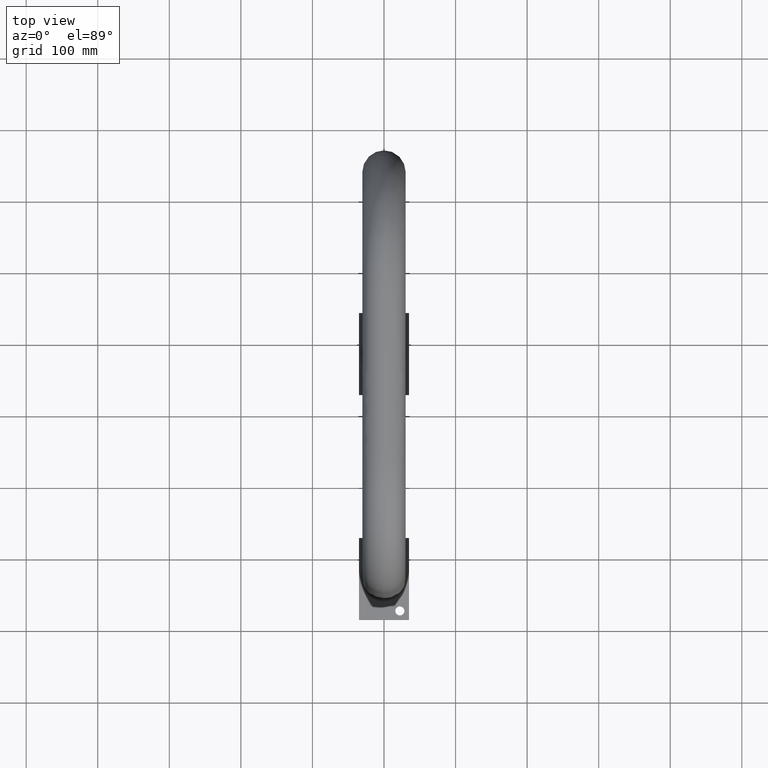
[diagram: clean part render]
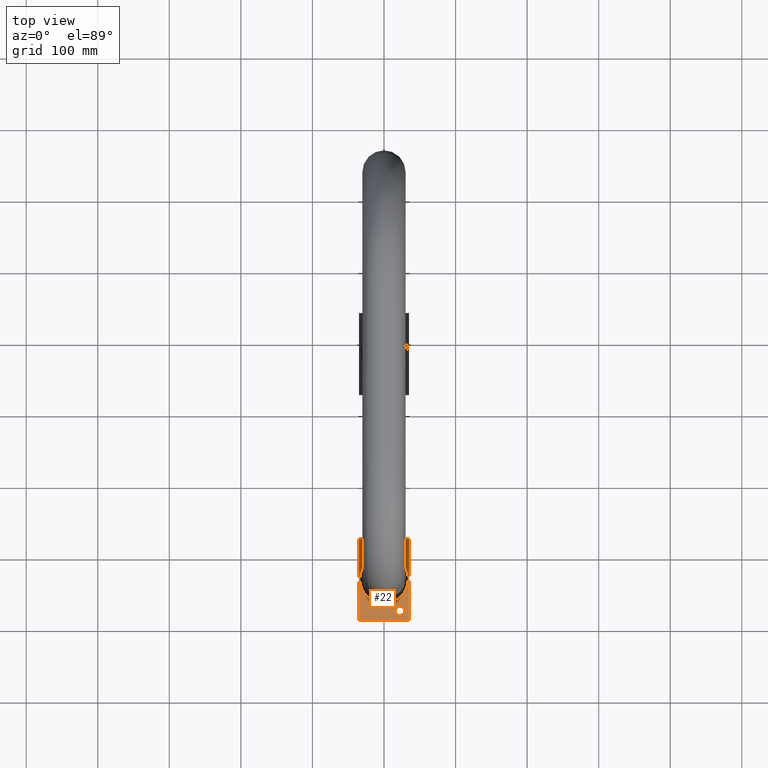
[diagram: same view with one face highlighted and labeled with its STEP entity id]
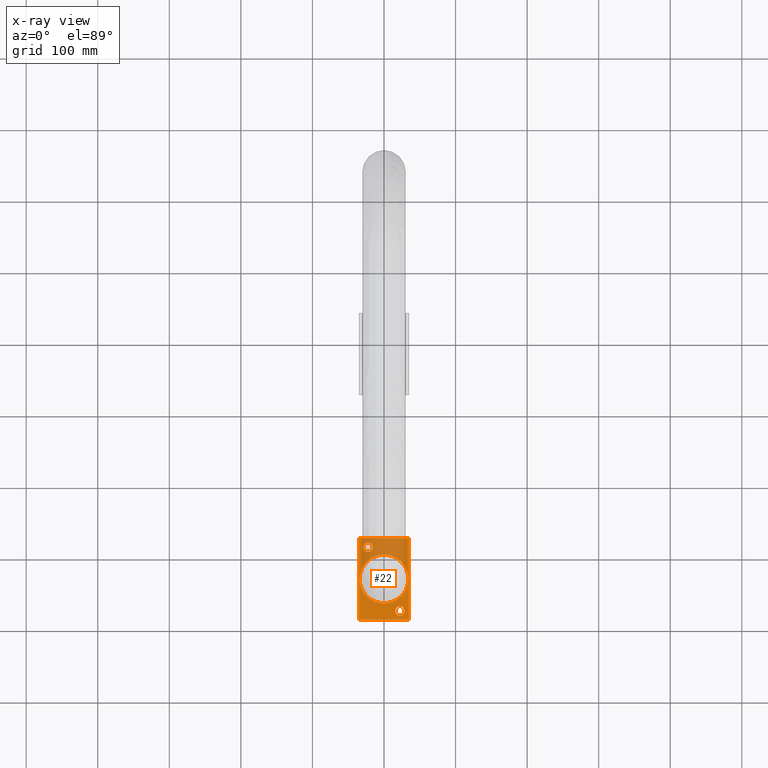
[diagram: x-ray of the same camera — body ghosted, the highlighted face saturated]
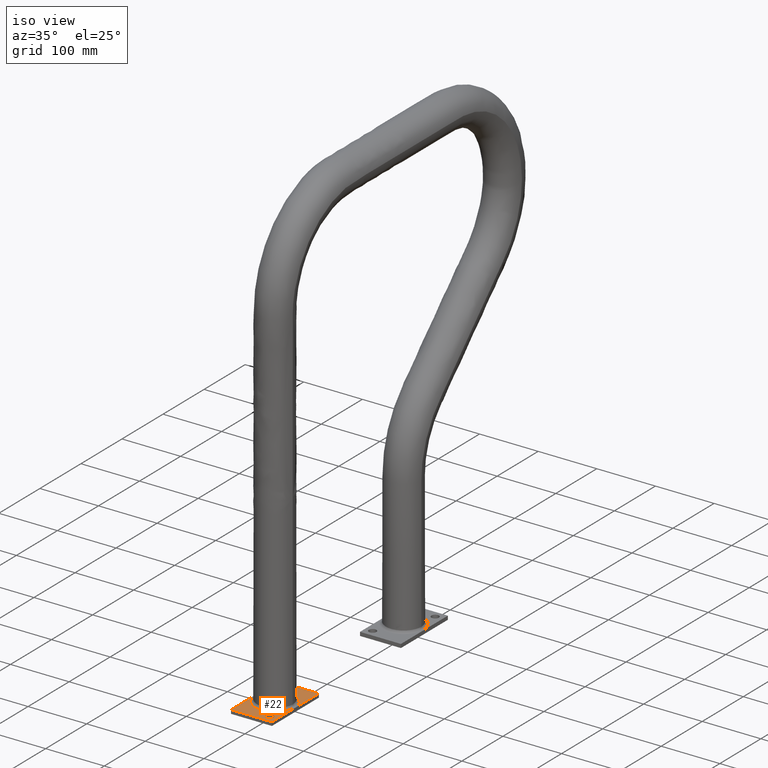
[diagram: same view with one face highlighted and labeled with its STEP entity id]
A machine part, top view. The second image highlights one B-rep face of the part: STEP entity #22.
The next image is the same camera in x-ray: the body ghosted, the highlighted face saturated — about 39% of this face is hidden behind the body in this view.
A second angle (iso view) of the same face is appended — the face is thin or edge-on in the first view.
In plain terms, the highlighted planar face has unit normal (0, 0, 1).
Its self-contained STEP definition (entity closure, byte-faithful):
#22=ADVANCED_FACE($,(#58,#47,#48,#49),#368,.T.);
#47=FACE_BOUND($,#92,.T.);
#48=FACE_BOUND($,#93,.T.);
#49=FACE_BOUND($,#94,.T.);
#58=FACE_OUTER_BOUND($,#91,.T.);
#91=EDGE_LOOP($,(#158,#159,#160,#161));
#92=EDGE_LOOP($,(#162,#163));
#93=EDGE_LOOP($,(#164,#165));
#94=EDGE_LOOP($,(#166,#167));
#158=ORIENTED_EDGE($,*,*,#254,.T.);
#159=ORIENTED_EDGE($,*,*,#260,.T.);
#160=ORIENTED_EDGE($,*,*,#259,.T.);
#161=ORIENTED_EDGE($,*,*,#258,.T.);
#162=ORIENTED_EDGE($,*,*,#264,.T.);
#163=ORIENTED_EDGE($,*,*,#287,.T.);
#164=ORIENTED_EDGE($,*,*,#294,.F.);
#165=ORIENTED_EDGE($,*,*,#272,.F.);
#166=ORIENTED_EDGE($,*,*,#297,.F.);
#167=ORIENTED_EDGE($,*,*,#275,.F.);
#254=EDGE_CURVE($,#313,#319,#418,.T.);
#258=EDGE_CURVE($,#317,#313,#422,.T.);
#259=EDGE_CURVE($,#318,#317,#423,.T.);
#260=EDGE_CURVE($,#319,#318,#424,.T.);
#264=EDGE_CURVE($,#320,#334,#372,.T.);
#272=EDGE_CURVE($,#325,#339,#380,.T.);
#275=EDGE_CURVE($,#327,#341,#382,.T.);
#287=EDGE_CURVE($,#334,#320,#391,.T.);
#294=EDGE_CURVE($,#339,#325,#397,.T.);
#297=EDGE_CURVE($,#341,#327,#399,.T.);
#313=VERTEX_POINT($,#1694);
#317=VERTEX_POINT($,#1698);
#318=VERTEX_POINT($,#1699);
#319=VERTEX_POINT($,#1700);
#320=VERTEX_POINT($,#1701);
#325=VERTEX_POINT($,#1706);
#327=VERTEX_POINT($,#1708);
#334=VERTEX_POINT($,#1715);
#339=VERTEX_POINT($,#1720);
#341=VERTEX_POINT($,#1722);
#368=PLANE($,#535);
#372=(
BOUNDED_CURVE()
B_SPLINE_CURVE(3,(#605,#606,#607,#608,#609,#610,#611),.UNSPECIFIED.,.F.,
.F.)
B_SPLINE_CURVE_WITH_KNOTS((4,1,1,1,4),(-9.68063434931485E-06,0.983040870456831,
2.01477237132182,3.08782355078826,4.16456724176145),.UNSPECIFIED.)
CURVE()
GEOMETRIC_REPRESENTATION_ITEM()
RATIONAL_B_SPLINE_CURVE((1.,1.,1.,1.,1.,1.,1.))
REPRESENTATION_ITEM($)
);
#380=(
BOUNDED_CURVE()
B_SPLINE_CURVE(2,(#705,#706,#707,#708,#709),.UNSPECIFIED.,.F.,.F.)
B_SPLINE_CURVE_WITH_KNOTS((3,2,3),(0.,0.392718697086878,0.785437394173757),
.UNSPECIFIED.)
CURVE()
GEOMETRIC_REPRESENTATION_ITEM()
RATIONAL_B_SPLINE_CURVE((1.,0.707106781186547,1.,0.707106781186547,1.))
REPRESENTATION_ITEM($)
);
#382=(
BOUNDED_CURVE()
B_SPLINE_CURVE(2,(#717,#718,#719,#720,#721),.UNSPECIFIED.,.F.,.F.)
B_SPLINE_CURVE_WITH_KNOTS((3,2,3),(0.,0.392718697086879,0.785437394173758),
.UNSPECIFIED.)
CURVE()
GEOMETRIC_REPRESENTATION_ITEM()
RATIONAL_B_SPLINE_CURVE((1.,0.707106781186547,1.,0.707106781186547,1.))
REPRESENTATION_ITEM($)
);
#391=(
BOUNDED_CURVE()
B_SPLINE_CURVE(3,(#823,#824,#825,#826,#827,#828,#829),.UNSPECIFIED.,.F.,
.F.)
B_SPLINE_CURVE_WITH_KNOTS((4,1,1,1,4),(4.16456724176145,5.22729711411896,
6.31438222625866,7.33210714360118,8.41917953201777),.UNSPECIFIED.)
CURVE()
GEOMETRIC_REPRESENTATION_ITEM()
RATIONAL_B_SPLINE_CURVE((1.,1.,1.,1.,1.,1.,1.))
REPRESENTATION_ITEM($)
);
#397=(
BOUNDED_CURVE()
B_SPLINE_CURVE(2,(#858,#859,#860,#861,#862),.UNSPECIFIED.,.F.,.F.)
B_SPLINE_CURVE_WITH_KNOTS((3,2,3),(0.785437394173757,1.17815609126064,1.57087478834751),
.UNSPECIFIED.)
CURVE()
GEOMETRIC_REPRESENTATION_ITEM()
RATIONAL_B_SPLINE_CURVE((1.,0.707106781186547,1.,0.707106781186547,1.))
REPRESENTATION_ITEM($)
);
#399=(
BOUNDED_CURVE()
B_SPLINE_CURVE(2,(#870,#871,#872,#873,#874),.UNSPECIFIED.,.F.,.F.)
B_SPLINE_CURVE_WITH_KNOTS((3,2,3),(0.785437394173758,1.17815609126064,1.57087478834752),
.UNSPECIFIED.)
CURVE()
GEOMETRIC_REPRESENTATION_ITEM()
RATIONAL_B_SPLINE_CURVE((1.,0.707106781186547,1.,0.707106781186547,1.))
REPRESENTATION_ITEM($)
);
#418=B_SPLINE_CURVE_WITH_KNOTS($,1,(#585,#586),.UNSPECIFIED.,.F.,.F.,(2,
2),(0.,4.),.UNSPECIFIED.);
#422=B_SPLINE_CURVE_WITH_KNOTS($,1,(#593,#594),.UNSPECIFIED.,.F.,.F.,(2,
2),(10.75,13.5),.UNSPECIFIED.);
#423=B_SPLINE_CURVE_WITH_KNOTS($,1,(#595,#596),.UNSPECIFIED.,.F.,.F.,(2,
2),(6.75,10.75),.UNSPECIFIED.);
#424=B_SPLINE_CURVE_WITH_KNOTS($,1,(#597,#598),.UNSPECIFIED.,.F.,.F.,(2,
2),(4.,6.75),.UNSPECIFIED.);
#535=AXIS2_PLACEMENT_3D($,#907,#550,$);
#550=DIRECTION($,(0.,0.,1.));
#585=CARTESIAN_POINT($,(1.375,-7.25,0.25));
#586=CARTESIAN_POINT($,(1.375,-2.75,0.25));
#593=CARTESIAN_POINT($,(-1.375,-7.25,0.25));
#594=CARTESIAN_POINT($,(1.375,-7.25,0.25));
#595=CARTESIAN_POINT($,(-1.375,-2.75,0.25));
#596=CARTESIAN_POINT($,(-1.375,-7.25,0.25));
#597=CARTESIAN_POINT($,(1.375,-2.75,0.25));
#598=CARTESIAN_POINT($,(-1.375,-2.75,0.25));
#605=CARTESIAN_POINT($,(1.33999997338844,-4.99999031936567,0.25));
#606=CARTESIAN_POINT($,(1.34117553016733,-5.32745595064076,0.25));
#607=CARTESIAN_POINT($,(1.08282376955518,-5.99797380157868,0.25));
#608=CARTESIAN_POINT($,(0.086299200522177,-6.48368978367302,0.25));
#609=CARTESIAN_POINT($,(-1.00049699338365,-6.10773931167013,0.25));
#610=CARTESIAN_POINT($,(-1.32804154408231,-5.40321535492845,0.25));
#611=CARTESIAN_POINT($,(-1.34012187932785,-5.04507878153295,0.25));
#705=CARTESIAN_POINT($,(0.875,-6.5,0.25));
#706=CARTESIAN_POINT($,(0.625000000000005,-6.5,0.25));
#707=CARTESIAN_POINT($,(0.625,-6.75,0.25));
#708=CARTESIAN_POINT($,(0.625000000000005,-7.,0.25));
#709=CARTESIAN_POINT($,(0.875,-7.,0.25));
#717=CARTESIAN_POINT($,(-0.875,-3.,0.25));
#718=CARTESIAN_POINT($,(-1.125,-3.,0.25));
#719=CARTESIAN_POINT($,(-1.125,-3.25,0.25));
#720=CARTESIAN_POINT($,(-1.125,-3.50000000000001,0.25));
#721=CARTESIAN_POINT($,(-0.875,-3.5,0.25));
#823=CARTESIAN_POINT($,(-1.34012187932785,-5.04507878153295,0.25));
#824=CARTESIAN_POINT($,(-1.35204498901604,-4.69160335546645,0.25));
#825=CARTESIAN_POINT($,(-1.07668542825959,-3.96616750076279,0.25));
#826=CARTESIAN_POINT($,(-0.0232601644918446,-3.51387532224372,0.25));
#827=CARTESIAN_POINT($,(1.03923260359238,-3.93977989488344,0.25));
#828=CARTESIAN_POINT($,(1.34227346593688,-4.6372462425536,0.25));
#829=CARTESIAN_POINT($,(1.33999997338844,-4.99999031936567,0.25));
#858=CARTESIAN_POINT($,(0.875,-7.,0.25));
#859=CARTESIAN_POINT($,(1.125,-7.,0.25));
#860=CARTESIAN_POINT($,(1.125,-6.75,0.25));
#861=CARTESIAN_POINT($,(1.125,-6.5,0.25));
#862=CARTESIAN_POINT($,(0.875,-6.5,0.25));
#870=CARTESIAN_POINT($,(-0.875,-3.5,0.25));
#871=CARTESIAN_POINT($,(-0.624999999999995,-3.50000000000001,0.25));
#872=CARTESIAN_POINT($,(-0.625,-3.25,0.25));
#873=CARTESIAN_POINT($,(-0.624999999999995,-3.,0.25));
#874=CARTESIAN_POINT($,(-0.875,-3.,0.25));
#907=CARTESIAN_POINT($,(1.375,-2.75,0.25));
#1694=CARTESIAN_POINT($,(1.375,-7.25,0.25));
#1698=CARTESIAN_POINT($,(-1.375,-7.25,0.25));
#1699=CARTESIAN_POINT($,(-1.375,-2.75,0.25));
#1700=CARTESIAN_POINT($,(1.375,-2.75,0.25));
#1701=CARTESIAN_POINT($,(1.33999997338844,-4.99999031936567,0.25));
#1706=CARTESIAN_POINT($,(0.875,-6.5,0.25));
#1708=CARTESIAN_POINT($,(-0.875,-3.,0.25));
#1715=CARTESIAN_POINT($,(-1.34012187932785,-5.04507878153295,0.25));
#1720=CARTESIAN_POINT($,(0.875,-7.,0.25));
#1722=CARTESIAN_POINT($,(-0.875,-3.5,0.25));